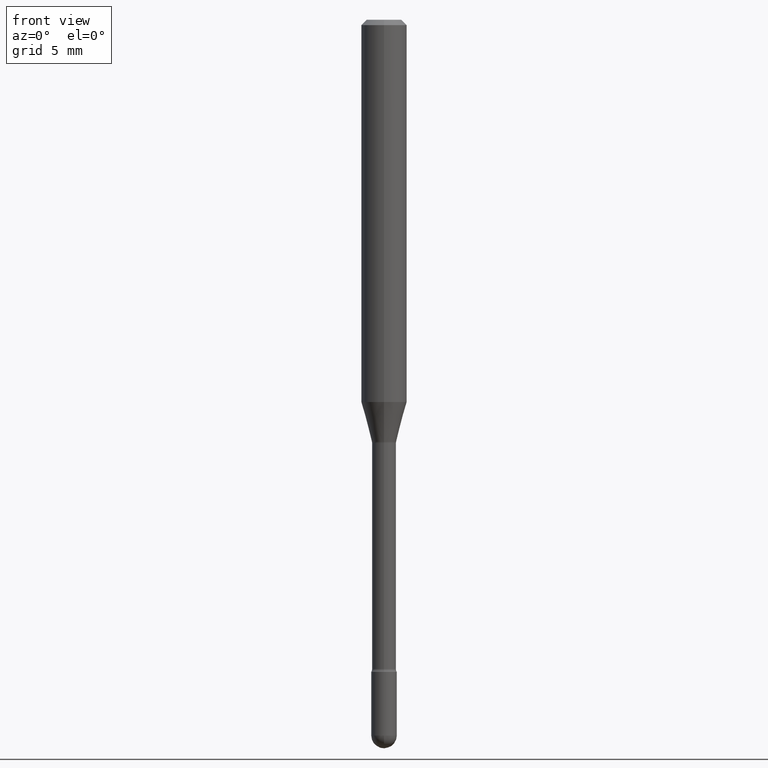
[diagram: clean part render]
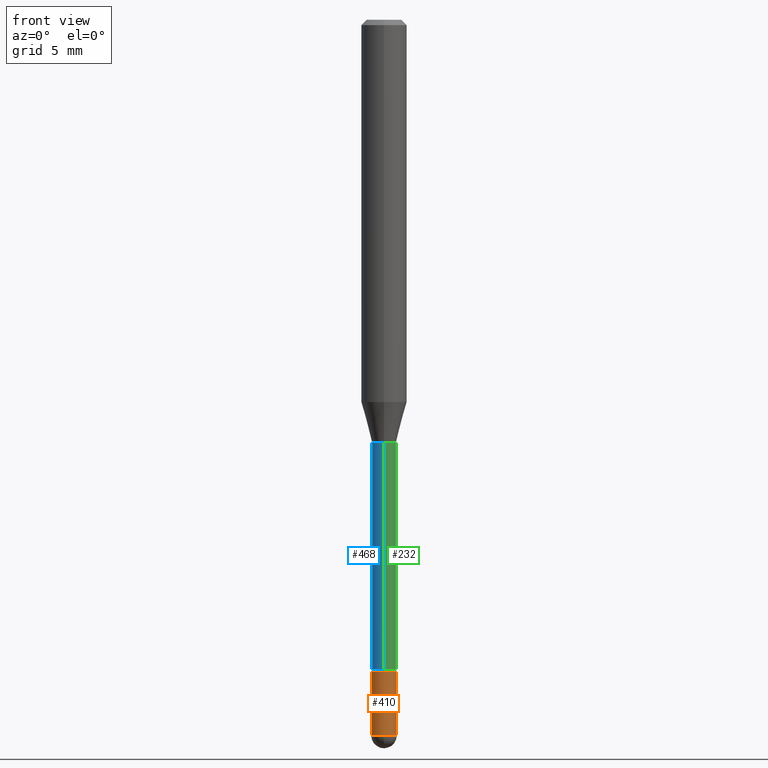
[diagram: same view with three faces highlighted in distinct colors, each labeled with its STEP entity id]
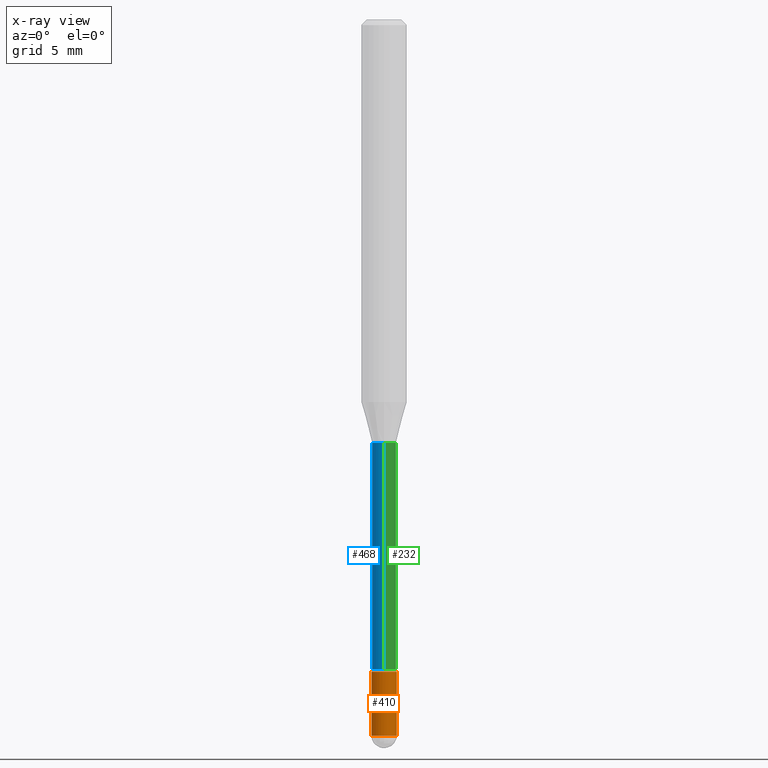
[diagram: x-ray of the same camera — body ghosted, the three highlighted faces saturated]
A machine part, front view with three faces highlighted in distinct colors.
The next image is the same camera in x-ray (body ghosted, the three faces saturated) — at least one of them is partly hidden behind the body in this view.
Their STEP definitions:

[orange] entity #410 — the highlighted cylindrical surface (edge-blend (fillet) strip) has radius 0.889 mm, axis along (-0, 0, 1).
#9 = LINE ( 'NONE', #447, #164 ) ;
#15 = ORIENTED_EDGE ( 'NONE', *, *, #74, .F. ) ;
#24 = CARTESIAN_POINT ( 'NONE',  ( 4.805346204153793345E-29, -6.860760830826780393E-15, -1.964999999999999858 ) ) ;
#28 = DIRECTION ( 'NONE',  ( -2.445468806185136597E-29, 3.491481338843145583E-15, 1.000000000000000000 ) ) ;
#29 = VERTEX_POINT ( 'NONE', #437 ) ;
#30 = AXIS2_PLACEMENT_3D ( 'NONE', #426, #206, #375 ) ;
#74 = EDGE_CURVE ( 'NONE', #29, #302, #9, .T. ) ;
#77 = DIRECTION ( 'NONE',  ( 1.000000000000000000, -6.982962677686276966E-15, 0.000000000000000000 ) ) ;
#83 = DIRECTION ( 'NONE',  ( -2.445468806185136597E-29, 3.491481338843145583E-15, 1.000000000000000000 ) ) ;
#92 = EDGE_CURVE ( 'NONE', #497, #271, #314, .T. ) ;
#133 = CARTESIAN_POINT ( 'NONE',  ( 0.000000000000000000, 0.000000000000000000, 0.000000000000000000 ) ) ;
#154 = CARTESIAN_POINT ( 'NONE',  ( 4.805346204153793345E-29, -6.860760830826780393E-15, -1.964999999999999858 ) ) ;
#156 = CIRCLE ( 'NONE', #342, 0.03500000000000000333 ) ;
#164 = VECTOR ( 'NONE', #521, 39.37007874015748143 ) ;
#171 = CYLINDRICAL_SURFACE ( 'NONE', #524, 0.03500000000000000333 ) ;
#206 = DIRECTION ( 'NONE',  ( -2.445468806185136597E-29, 3.491481338843145583E-15, 1.000000000000000000 ) ) ;
#214 = CIRCLE ( 'NONE', #30, 0.03500000000000000333 ) ;
#219 = EDGE_CURVE ( 'NONE', #373, #497, #387, .T. ) ;
#234 = ORIENTED_EDGE ( 'NONE', *, *, #329, .T. ) ;
#236 = VECTOR ( 'NONE', #400, 39.37007874015748143 ) ;
#244 = EDGE_CURVE ( 'NONE', #302, #271, #214, .T. ) ;
#271 = VERTEX_POINT ( 'NONE', #326 ) ;
#299 = CARTESIAN_POINT ( 'NONE',  ( -2.486899575159870668E-16, -0.03500000000000687284, -1.964999999999999858 ) ) ;
#302 = VERTEX_POINT ( 'NONE', #545 ) ;
#307 = FACE_OUTER_BOUND ( 'NONE', #499, .T. ) ;
#314 = LINE ( 'NONE', #484, #236 ) ;
#326 = CARTESIAN_POINT ( 'NONE',  ( 0.03500000000000000333, -6.494155290248250444E-15, -1.790000000000000036 ) ) ;
#329 = EDGE_CURVE ( 'NONE', #29, #373, #156, .T. ) ;
#342 = AXIS2_PLACEMENT_3D ( 'NONE', #154, #542, #506 ) ;
#373 = VERTEX_POINT ( 'NONE', #299 ) ;
#375 = DIRECTION ( 'NONE',  ( 1.000000000000000000, -6.982962677686276966E-15, 0.000000000000000000 ) ) ;
#383 = CARTESIAN_POINT ( 'NONE',  ( 0.03500000000000000333, -6.799659907397025402E-15, -1.964999999999999858 ) ) ;
#387 = CIRCLE ( 'NONE', #496, 0.03500000000000000333 ) ;
#400 = DIRECTION ( 'NONE',  ( -2.445468806185136877E-29, 3.491481338843145188E-15, 1.000000000000000000 ) ) ;
#410 = ADVANCED_FACE ( 'NONE', ( #307 ), #171, .T. ) ;
#426 = CARTESIAN_POINT ( 'NONE',  ( 4.377389163071394665E-29, -6.249751596529231267E-15, -1.790000000000000036 ) ) ;
#437 = CARTESIAN_POINT ( 'NONE',  ( -0.03500000000000000333, -6.306566256161970939E-15, -1.964999999999999858 ) ) ;
#439 = DIRECTION ( 'NONE',  ( 1.000000000000000000, -6.982962677686265922E-15, 4.876176775795936353E-29 ) ) ;
#447 = CARTESIAN_POINT ( 'NONE',  ( -0.03500000000000000333, 2.486899575160350887E-16, -1.721627281589217108E-30 ) ) ;
#463 = ORIENTED_EDGE ( 'NONE', *, *, #219, .T. ) ;
#484 = CARTESIAN_POINT ( 'NONE',  ( 0.03500000000000000333, -2.444036937190193250E-16, 1.706661871528577808E-30 ) ) ;
#496 = AXIS2_PLACEMENT_3D ( 'NONE', #24, #28, #77 ) ;
#497 = VERTEX_POINT ( 'NONE', #383 ) ;
#499 = EDGE_LOOP ( 'NONE', ( #15, #234, #463, #543, #510 ) ) ;
#506 = DIRECTION ( 'NONE',  ( 1.000000000000000000, -6.982962677686276966E-15, 0.000000000000000000 ) ) ;
#510 = ORIENTED_EDGE ( 'NONE', *, *, #244, .F. ) ;
#521 = DIRECTION ( 'NONE',  ( -2.445468806185136877E-29, 3.491481338843145188E-15, 1.000000000000000000 ) ) ;
#524 = AXIS2_PLACEMENT_3D ( 'NONE', #133, #83, #439 ) ;
#542 = DIRECTION ( 'NONE',  ( -2.445468806185136597E-29, 3.491481338843145583E-15, 1.000000000000000000 ) ) ;
#543 = ORIENTED_EDGE ( 'NONE', *, *, #92, .T. ) ;
#545 = CARTESIAN_POINT ( 'NONE',  ( -0.03500000000000000333, -6.306566256161970939E-15, -1.790000000000000036 ) ) ;

[blue] entity #468 — the highlighted cylindrical surface (edge-blend (fillet) strip) has radius 0.8357 mm, axis along (-0, 0, 1).
#3 = DIRECTION ( 'NONE',  ( -6.982962677686265922E-15, -1.000000000000000000, 3.491469661165305305E-15 ) ) ;
#31 = AXIS2_PLACEMENT_3D ( 'NONE', #98, #357, #229 ) ;
#34 = EDGE_CURVE ( 'NONE', #38, #194, #512, .T. ) ;
#38 = VERTEX_POINT ( 'NONE', #210 ) ;
#47 = DIRECTION ( 'NONE',  ( -2.445476960663988921E-29, 3.491469661165304910E-15, 1.000000000000000000 ) ) ;
#53 = CARTESIAN_POINT ( 'NONE',  ( 2.841582571615184441E-29, -4.056999717468898277E-15, -1.161974787463810665 ) ) ;
#55 = DIRECTION ( 'NONE',  ( -6.982962677686266711E-15, -1.000000000000000000, 4.151744671222284594E-15 ) ) ;
#96 = EDGE_CURVE ( 'NONE', #194, #240, #530, .T. ) ;
#98 = CARTESIAN_POINT ( 'NONE',  ( 4.358685075079700183E-29, -6.223005551474419818E-15, -1.782345589506695971 ) ) ;
#114 = AXIS2_PLACEMENT_3D ( 'NONE', #53, #47, #55 ) ;
#131 = CARTESIAN_POINT ( 'NONE',  ( 2.337685600651166843E-16, 0.03289999999999595331, -1.161974787463810888 ) ) ;
#155 = VECTOR ( 'NONE', #424, 39.37007874015748143 ) ;
#165 = VECTOR ( 'NONE', #344, 39.37007874015748143 ) ;
#192 = AXIS2_PLACEMENT_3D ( 'NONE', #349, #565, #3 ) ;
#194 = VERTEX_POINT ( 'NONE', #131 ) ;
#210 = CARTESIAN_POINT ( 'NONE',  ( 2.412292587905979007E-16, 0.03289999999999376062, -1.782345589506695971 ) ) ;
#229 = DIRECTION ( 'NONE',  ( -6.982962677686265922E-15, -1.000000000000000000, 0.000000000000000000 ) ) ;
#237 = CARTESIAN_POINT ( 'NONE',  ( -2.297394720958344695E-16, -0.03290000000000620900, -1.782345589506695971 ) ) ;
#238 = VERTEX_POINT ( 'NONE', #237 ) ;
#239 = CARTESIAN_POINT ( 'NONE',  ( -2.297394720958497537E-16, -0.03290000000000405794, -1.161974787463810443 ) ) ;
#240 = VERTEX_POINT ( 'NONE', #239 ) ;
#252 = CYLINDRICAL_SURFACE ( 'NONE', #192, 0.03289999999999999175 ) ;
#287 = EDGE_LOOP ( 'NONE', ( #294, #473, #330, #376 ) ) ;
#294 = ORIENTED_EDGE ( 'NONE', *, *, #34, .F. ) ;
#330 = ORIENTED_EDGE ( 'NONE', *, *, #480, .T. ) ;
#344 = DIRECTION ( 'NONE',  ( -2.445476960663988921E-29, 3.491469661165304910E-15, 1.000000000000000000 ) ) ;
#349 = CARTESIAN_POINT ( 'NONE',  ( -1.169113584055446105E-44, 1.669184350826100908E-30, 4.780733988912460139E-16 ) ) ;
#357 = DIRECTION ( 'NONE',  ( -2.445476960663988921E-29, 3.491469661165304910E-15, 1.000000000000000000 ) ) ;
#376 = ORIENTED_EDGE ( 'NONE', *, *, #96, .F. ) ;
#393 = FACE_OUTER_BOUND ( 'NONE', #287, .T. ) ;
#424 = DIRECTION ( 'NONE',  ( -2.445476960663988921E-29, 3.491469661165304910E-15, 1.000000000000000000 ) ) ;
#431 = LINE ( 'NONE', #515, #165 ) ;
#452 = CIRCLE ( 'NONE', #31, 0.03289999999999998481 ) ;
#465 = CARTESIAN_POINT ( 'NONE',  ( 2.337685600650729025E-16, 0.03289999999999999175, 3.632040470389075726E-16 ) ) ;
#468 = ADVANCED_FACE ( 'NONE', ( #393 ), #252, .T. ) ;
#473 = ORIENTED_EDGE ( 'NONE', *, *, #557, .T. ) ;
#480 = EDGE_CURVE ( 'NONE', #238, #240, #431, .T. ) ;
#512 = LINE ( 'NONE', #465, #155 ) ;
#515 = CARTESIAN_POINT ( 'NONE',  ( -2.297394720958781034E-16, -0.03289999999999999175, 5.929427507435845539E-16 ) ) ;
#530 = CIRCLE ( 'NONE', #114, 0.03289999999999999869 ) ;
#557 = EDGE_CURVE ( 'NONE', #38, #238, #452, .T. ) ;
#565 = DIRECTION ( 'NONE',  ( -2.445476960663988921E-29, 3.491469661165304910E-15, 1.000000000000000000 ) ) ;

[green] entity #232 — the highlighted cylindrical surface (edge-blend (fillet) strip) has radius 0.8357 mm, axis along (-0, 0, 1).
#32 = FACE_OUTER_BOUND ( 'NONE', #471, .T. ) ;
#34 = EDGE_CURVE ( 'NONE', #38, #194, #512, .T. ) ;
#38 = VERTEX_POINT ( 'NONE', #210 ) ;
#122 = CARTESIAN_POINT ( 'NONE',  ( -1.169113584055446105E-44, 1.669184350826100908E-30, 4.780733988912460139E-16 ) ) ;
#131 = CARTESIAN_POINT ( 'NONE',  ( 2.337685600651166843E-16, 0.03289999999999595331, -1.161974787463810888 ) ) ;
#155 = VECTOR ( 'NONE', #424, 39.37007874015748143 ) ;
#160 = DIRECTION ( 'NONE',  ( -2.445476960663988921E-29, 3.491469661165304910E-15, 1.000000000000000000 ) ) ;
#165 = VECTOR ( 'NONE', #344, 39.37007874015748143 ) ;
#166 = EDGE_CURVE ( 'NONE', #240, #194, #401, .T. ) ;
#194 = VERTEX_POINT ( 'NONE', #131 ) ;
#210 = CARTESIAN_POINT ( 'NONE',  ( 2.412292587905979007E-16, 0.03289999999999376062, -1.782345589506695971 ) ) ;
#232 = ADVANCED_FACE ( 'NONE', ( #32 ), #333, .T. ) ;
#237 = CARTESIAN_POINT ( 'NONE',  ( -2.297394720958344695E-16, -0.03290000000000620900, -1.782345589506695971 ) ) ;
#238 = VERTEX_POINT ( 'NONE', #237 ) ;
#239 = CARTESIAN_POINT ( 'NONE',  ( -2.297394720958497537E-16, -0.03290000000000405794, -1.161974787463810443 ) ) ;
#240 = VERTEX_POINT ( 'NONE', #239 ) ;
#263 = EDGE_CURVE ( 'NONE', #238, #38, #451, .T. ) ;
#321 = ORIENTED_EDGE ( 'NONE', *, *, #263, .T. ) ;
#333 = CYLINDRICAL_SURFACE ( 'NONE', #460, 0.03289999999999999175 ) ;
#334 = ORIENTED_EDGE ( 'NONE', *, *, #480, .F. ) ;
#336 = DIRECTION ( 'NONE',  ( -2.445476960663988921E-29, 3.491469661165304910E-15, 1.000000000000000000 ) ) ;
#339 = DIRECTION ( 'NONE',  ( -6.982962677686265922E-15, -1.000000000000000000, 0.000000000000000000 ) ) ;
#344 = DIRECTION ( 'NONE',  ( -2.445476960663988921E-29, 3.491469661165304910E-15, 1.000000000000000000 ) ) ;
#361 = DIRECTION ( 'NONE',  ( -6.982962677686266711E-15, -1.000000000000000000, 4.151744671222284594E-15 ) ) ;
#398 = CARTESIAN_POINT ( 'NONE',  ( 2.841582571615184441E-29, -4.056999717468898277E-15, -1.161974787463810665 ) ) ;
#401 = CIRCLE ( 'NONE', #402, 0.03289999999999999869 ) ;
#402 = AXIS2_PLACEMENT_3D ( 'NONE', #398, #408, #361 ) ;
#404 = ORIENTED_EDGE ( 'NONE', *, *, #34, .T. ) ;
#408 = DIRECTION ( 'NONE',  ( -2.445476960663988921E-29, 3.491469661165304910E-15, 1.000000000000000000 ) ) ;
#424 = DIRECTION ( 'NONE',  ( -2.445476960663988921E-29, 3.491469661165304910E-15, 1.000000000000000000 ) ) ;
#425 = AXIS2_PLACEMENT_3D ( 'NONE', #547, #160, #339 ) ;
#431 = LINE ( 'NONE', #515, #165 ) ;
#451 = CIRCLE ( 'NONE', #425, 0.03289999999999998481 ) ;
#460 = AXIS2_PLACEMENT_3D ( 'NONE', #122, #336, #470 ) ;
#465 = CARTESIAN_POINT ( 'NONE',  ( 2.337685600650729025E-16, 0.03289999999999999175, 3.632040470389075726E-16 ) ) ;
#470 = DIRECTION ( 'NONE',  ( -6.982962677686265922E-15, -1.000000000000000000, 3.491469661165305305E-15 ) ) ;
#471 = EDGE_LOOP ( 'NONE', ( #321, #404, #539, #334 ) ) ;
#480 = EDGE_CURVE ( 'NONE', #238, #240, #431, .T. ) ;
#512 = LINE ( 'NONE', #465, #155 ) ;
#515 = CARTESIAN_POINT ( 'NONE',  ( -2.297394720958781034E-16, -0.03289999999999999175, 5.929427507435845539E-16 ) ) ;
#539 = ORIENTED_EDGE ( 'NONE', *, *, #166, .F. ) ;
#547 = CARTESIAN_POINT ( 'NONE',  ( 4.358685075079700183E-29, -6.223005551474419818E-15, -1.782345589506695971 ) ) ;